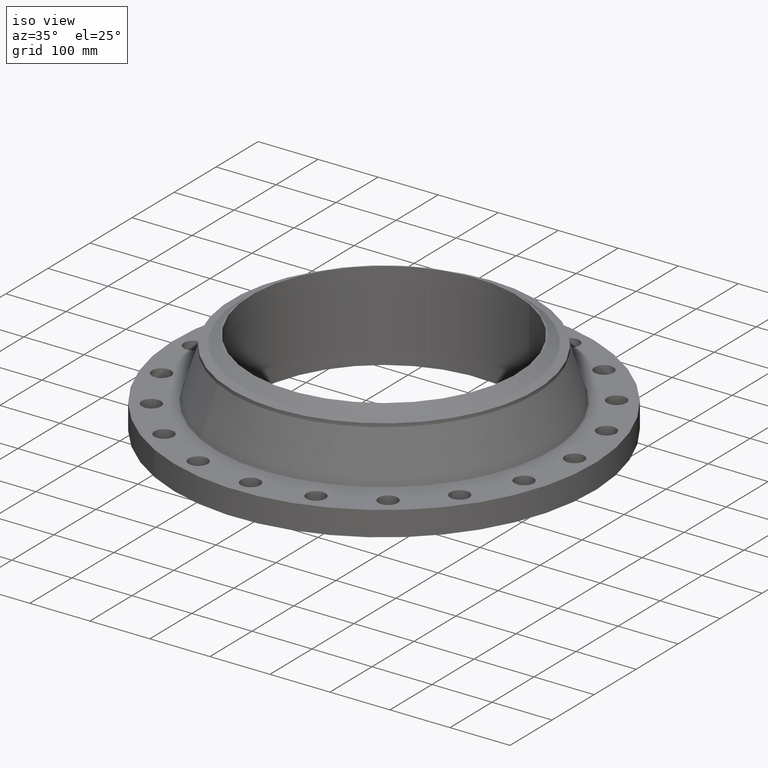
[diagram: clean part render]
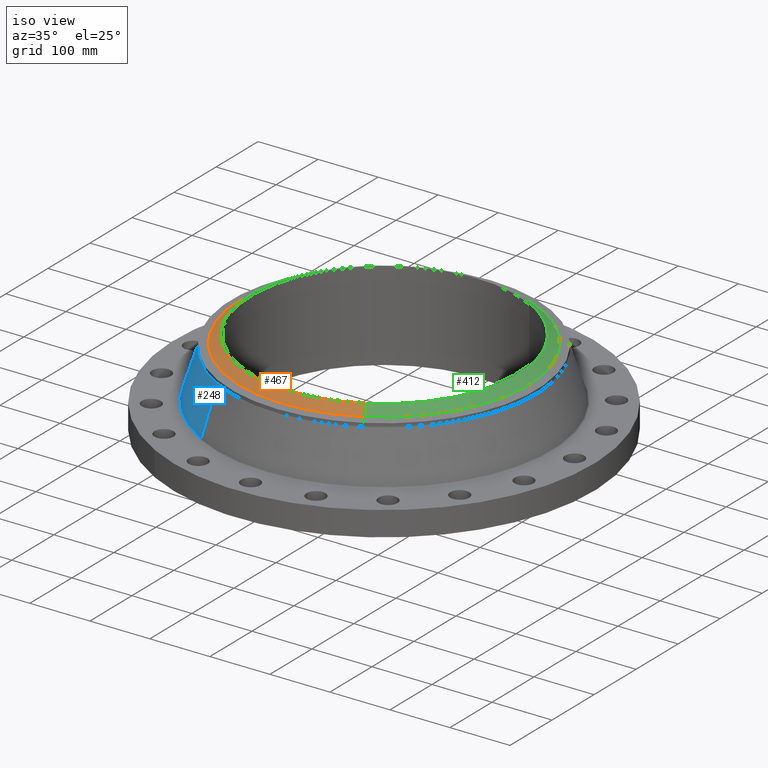
[diagram: same view with three faces highlighted in distinct colors, each labeled with its STEP entity id]
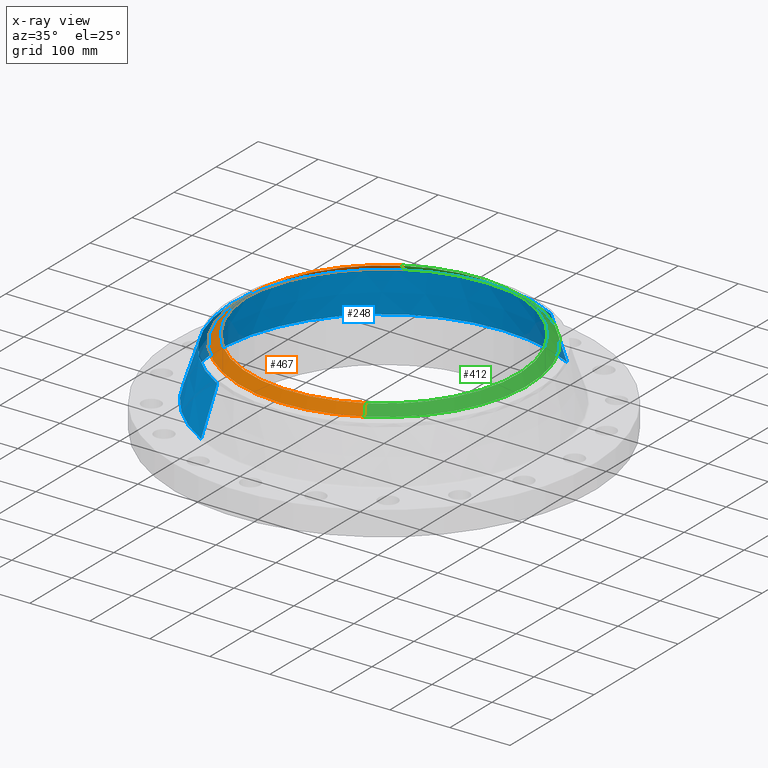
[diagram: x-ray of the same camera — body ghosted, the three highlighted faces saturated]
A machine part, iso view with three faces highlighted in distinct colors.
The next image is the same camera in x-ray (body ghosted, the three faces saturated) — at least one of them is partly hidden behind the body in this view.
Their STEP definitions:

[orange] entity #467 — the highlighted conical surface has half-angle 52.5 deg.
#356=AXIS2_PLACEMENT_3D('Circle Axis2P3D',#354,#355,$) ;
#385=AXIS2_PLACEMENT_3D('Cone Axis2P3D',#382,#383,#384) ;
#458=AXIS2_PLACEMENT_3D('Circle Axis2P3D',#456,#457,$) ;
#349=CARTESIAN_POINT('Vertex',(4.21786131352,-7.72074334628,5.62000000002)) ;
#351=CARTESIAN_POINT('Vertex',(-4.21786131352,7.72074334628,5.62000000002)) ;
#354=CARTESIAN_POINT('Axis2P3D Location',(0.,0.,5.62000000002)) ;
#382=CARTESIAN_POINT('Axis2P3D Location',(0.,0.,5.62000000002)) ;
#387=CARTESIAN_POINT('Line Origine',(4.37280261607,-8.00436149818,5.37201437259)) ;
#391=CARTESIAN_POINT('Vertex',(4.52774391862,-8.28797965009,5.12402874515)) ;
#398=CARTESIAN_POINT('Vertex',(-4.52774391862,8.28797965009,5.12402874515)) ;
#401=CARTESIAN_POINT('Line Origine',(-4.37280261607,8.00436149818,5.37201437259)) ;
#456=CARTESIAN_POINT('Axis2P3D Location',(0.,0.,5.12402874515)) ;
#355=DIRECTION('Axis2P3D Direction',(0.,0.,-0.0393700787402)) ;
#383=DIRECTION('Axis2P3D Direction',(-0.,-0.,-0.0393700787402)) ;
#384=DIRECTION('Axis2P3D XDirection',(0.0188750212049,-0.0345504945626,0.)) ;
#388=DIRECTION('Vector Direction',(0.014974561121,-0.02741075027,-0.023966985394)) ;
#402=DIRECTION('Vector Direction',(-0.014974561121,0.02741075027,-0.023966985394)) ;
#457=DIRECTION('Axis2P3D Direction',(0.,0.,-0.0393700787402)) ;
#389=VECTOR('Line Direction',#388,0.0393700787402) ;
#403=VECTOR('Line Direction',#402,0.0393700787402) ;
#462=ORIENTED_EDGE('',*,*,#358,.F.) ;
#463=ORIENTED_EDGE('',*,*,#405,.T.) ;
#464=ORIENTED_EDGE('',*,*,#460,.T.) ;
#465=ORIENTED_EDGE('',*,*,#393,.F.) ;
#467=ADVANCED_FACE('PartBody',(#466),#386,.T.) ;
#357=CIRCLE('generated circle',#356,8.79774015752) ;
#459=CIRCLE('generated circle',#458,9.44410248106) ;
#386=CONICAL_SURFACE('Cone',#385,8.79774015752,0.916297857297) ;
#358=EDGE_CURVE('',#352,#350,#357,.F.) ;
#393=EDGE_CURVE('',#350,#392,#390,.T.) ;
#405=EDGE_CURVE('',#352,#399,#404,.T.) ;
#460=EDGE_CURVE('',#399,#392,#459,.F.) ;
#461=EDGE_LOOP('',(#462,#463,#464,#465)) ;
#466=FACE_OUTER_BOUND('',#461,.T.) ;
#390=LINE('Line',#387,#389) ;
#404=LINE('Line',#401,#403) ;
#350=VERTEX_POINT('',#349) ;
#352=VERTEX_POINT('',#351) ;
#392=VERTEX_POINT('',#391) ;
#399=VERTEX_POINT('',#398) ;

[blue] entity #248 — the highlighted conical surface has half-angle 17.58 deg.
#196=AXIS2_PLACEMENT_3D('Circle Axis2P3D',#194,#195,$) ;
#209=AXIS2_PLACEMENT_3D('Cone Axis2P3D',#206,#207,#208) ;
#239=AXIS2_PLACEMENT_3D('Circle Axis2P3D',#237,#238,$) ;
#167=CARTESIAN_POINT('Vertex',(5.26095861661,9.63012015213,1.70375570861)) ;
#174=CARTESIAN_POINT('Vertex',(-5.26095861661,-9.63012015213,1.70375570861)) ;
#194=CARTESIAN_POINT('Axis2P3D Location',(0.,0.,1.70375570861)) ;
#206=CARTESIAN_POINT('Axis2P3D Location',(0.,0.,4.77623749355)) ;
#211=CARTESIAN_POINT('Line Origine',(5.02760700133,9.20297288554,3.23999660108)) ;
#215=CARTESIAN_POINT('Vertex',(4.79425538606,8.77582561894,4.77623749355)) ;
#222=CARTESIAN_POINT('Vertex',(-4.79425538606,-8.77582561894,4.77623749355)) ;
#225=CARTESIAN_POINT('Line Origine',(-5.02760700133,-9.20297288554,3.23999660108)) ;
#237=CARTESIAN_POINT('Axis2P3D Location',(0.,0.,4.77623749355)) ;
#195=DIRECTION('Axis2P3D Direction',(0.,0.,-0.0393700787402)) ;
#207=DIRECTION('Axis2P3D Direction',(0.,0.,-0.0393700787402)) ;
#208=DIRECTION('Axis2P3D XDirection',(-0.0188750212049,-0.0345504945626,0.)) ;
#212=DIRECTION('Vector Direction',(0.00570093140595,0.0104354849409,-0.0375313620211)) ;
#226=DIRECTION('Vector Direction',(-0.00570093140595,-0.0104354849409,-0.0375313620211)) ;
#238=DIRECTION('Axis2P3D Direction',(0.,0.,-0.0393700787402)) ;
#213=VECTOR('Line Direction',#212,0.0393700787402) ;
#227=VECTOR('Line Direction',#226,0.0393700787402) ;
#243=ORIENTED_EDGE('',*,*,#198,.F.) ;
#244=ORIENTED_EDGE('',*,*,#229,.T.) ;
#245=ORIENTED_EDGE('',*,*,#241,.T.) ;
#246=ORIENTED_EDGE('',*,*,#217,.F.) ;
#248=ADVANCED_FACE('PartBody',(#247),#210,.T.) ;
#197=CIRCLE('generated circle',#196,10.9734634328) ;
#240=CIRCLE('generated circle',#239,10.) ;
#210=CONICAL_SURFACE('Cone',#209,10.,0.306827430312) ;
#198=EDGE_CURVE('',#175,#168,#197,.T.) ;
#217=EDGE_CURVE('',#168,#216,#214,.F.) ;
#229=EDGE_CURVE('',#175,#223,#228,.F.) ;
#241=EDGE_CURVE('',#223,#216,#240,.T.) ;
#242=EDGE_LOOP('',(#243,#244,#245,#246)) ;
#247=FACE_OUTER_BOUND('',#242,.T.) ;
#214=LINE('Line',#211,#213) ;
#228=LINE('Line',#225,#227) ;
#168=VERTEX_POINT('',#167) ;
#175=VERTEX_POINT('',#174) ;
#216=VERTEX_POINT('',#215) ;
#223=VERTEX_POINT('',#222) ;

[green] entity #412 — the highlighted conical surface has half-angle 52.5 deg.
#347=AXIS2_PLACEMENT_3D('Circle Axis2P3D',#345,#346,$) ;
#385=AXIS2_PLACEMENT_3D('Cone Axis2P3D',#382,#383,#384) ;
#396=AXIS2_PLACEMENT_3D('Circle Axis2P3D',#394,#395,$) ;
#345=CARTESIAN_POINT('Axis2P3D Location',(0.,0.,5.62000000002)) ;
#349=CARTESIAN_POINT('Vertex',(4.21786131352,-7.72074334628,5.62000000002)) ;
#351=CARTESIAN_POINT('Vertex',(-4.21786131352,7.72074334628,5.62000000002)) ;
#382=CARTESIAN_POINT('Axis2P3D Location',(0.,0.,5.62000000002)) ;
#387=CARTESIAN_POINT('Line Origine',(4.37280261607,-8.00436149818,5.37201437259)) ;
#391=CARTESIAN_POINT('Vertex',(4.52774391862,-8.28797965009,5.12402874515)) ;
#394=CARTESIAN_POINT('Axis2P3D Location',(0.,0.,5.12402874515)) ;
#398=CARTESIAN_POINT('Vertex',(-4.52774391862,8.28797965009,5.12402874515)) ;
#401=CARTESIAN_POINT('Line Origine',(-4.37280261607,8.00436149818,5.37201437259)) ;
#346=DIRECTION('Axis2P3D Direction',(0.,0.,-0.0393700787402)) ;
#383=DIRECTION('Axis2P3D Direction',(-0.,-0.,-0.0393700787402)) ;
#384=DIRECTION('Axis2P3D XDirection',(0.0188750212049,-0.0345504945626,0.)) ;
#388=DIRECTION('Vector Direction',(0.014974561121,-0.02741075027,-0.023966985394)) ;
#395=DIRECTION('Axis2P3D Direction',(0.,0.,-0.0393700787402)) ;
#402=DIRECTION('Vector Direction',(-0.014974561121,0.02741075027,-0.023966985394)) ;
#389=VECTOR('Line Direction',#388,0.0393700787402) ;
#403=VECTOR('Line Direction',#402,0.0393700787402) ;
#407=ORIENTED_EDGE('',*,*,#353,.F.) ;
#408=ORIENTED_EDGE('',*,*,#393,.T.) ;
#409=ORIENTED_EDGE('',*,*,#400,.T.) ;
#410=ORIENTED_EDGE('',*,*,#405,.F.) ;
#412=ADVANCED_FACE('PartBody',(#411),#386,.T.) ;
#348=CIRCLE('generated circle',#347,8.79774015752) ;
#397=CIRCLE('generated circle',#396,9.44410248106) ;
#386=CONICAL_SURFACE('Cone',#385,8.79774015752,0.916297857297) ;
#353=EDGE_CURVE('',#350,#352,#348,.F.) ;
#393=EDGE_CURVE('',#350,#392,#390,.T.) ;
#400=EDGE_CURVE('',#392,#399,#397,.F.) ;
#405=EDGE_CURVE('',#352,#399,#404,.T.) ;
#406=EDGE_LOOP('',(#407,#408,#409,#410)) ;
#411=FACE_OUTER_BOUND('',#406,.T.) ;
#390=LINE('Line',#387,#389) ;
#404=LINE('Line',#401,#403) ;
#350=VERTEX_POINT('',#349) ;
#352=VERTEX_POINT('',#351) ;
#392=VERTEX_POINT('',#391) ;
#399=VERTEX_POINT('',#398) ;